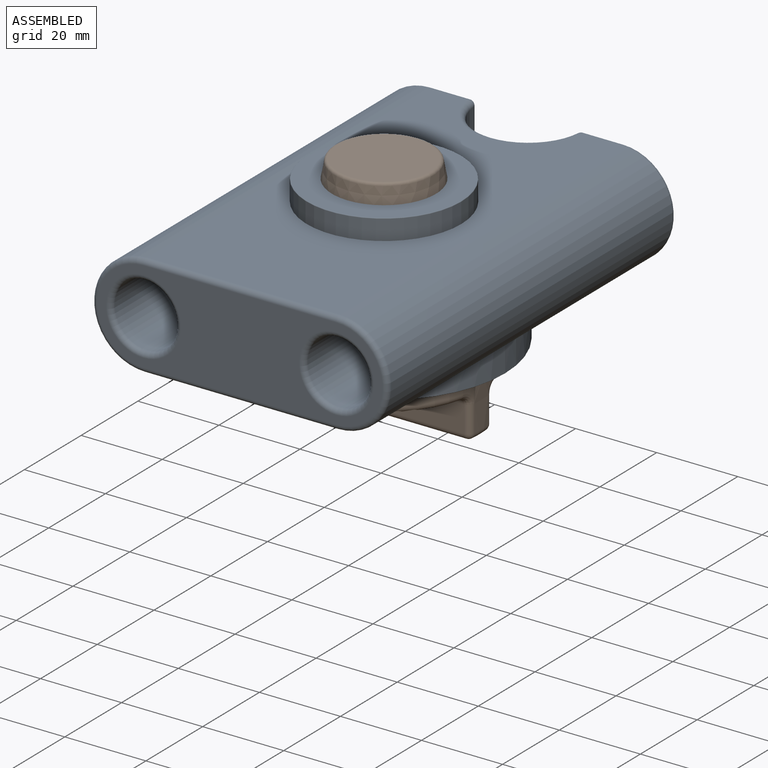
[diagram: assembled view]
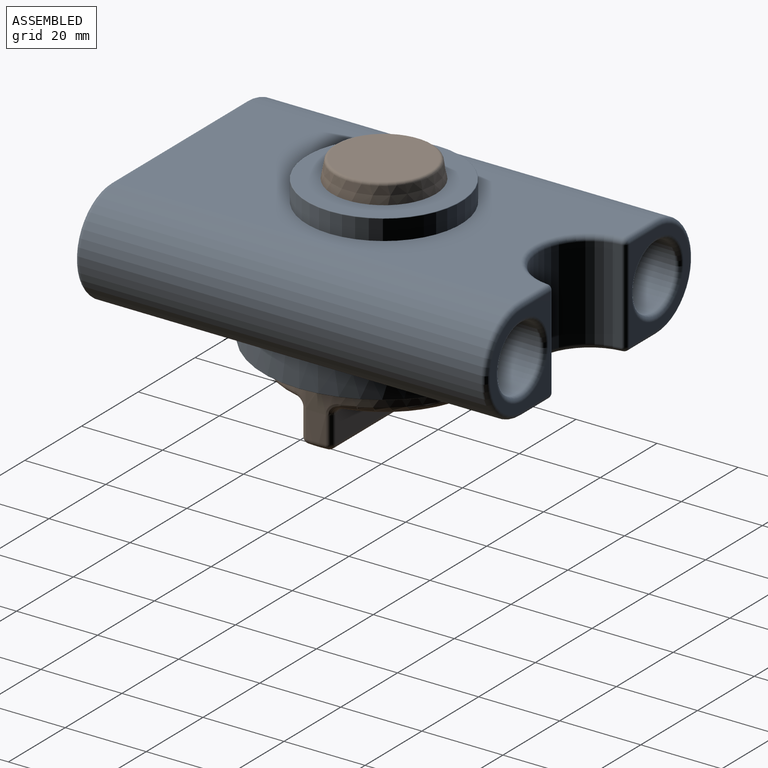
[diagram: assembled view, second angle]
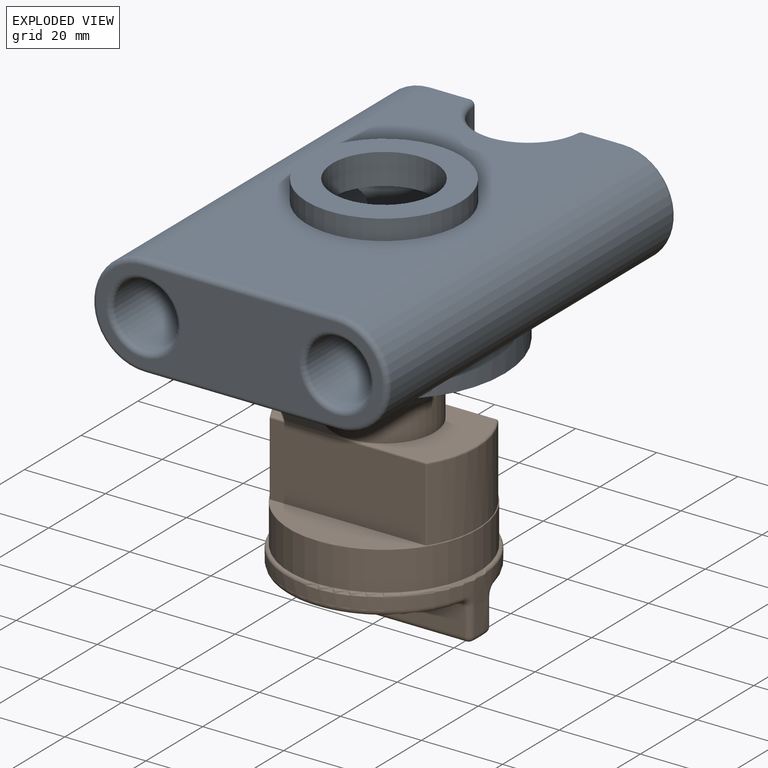
[diagram: exploded view]
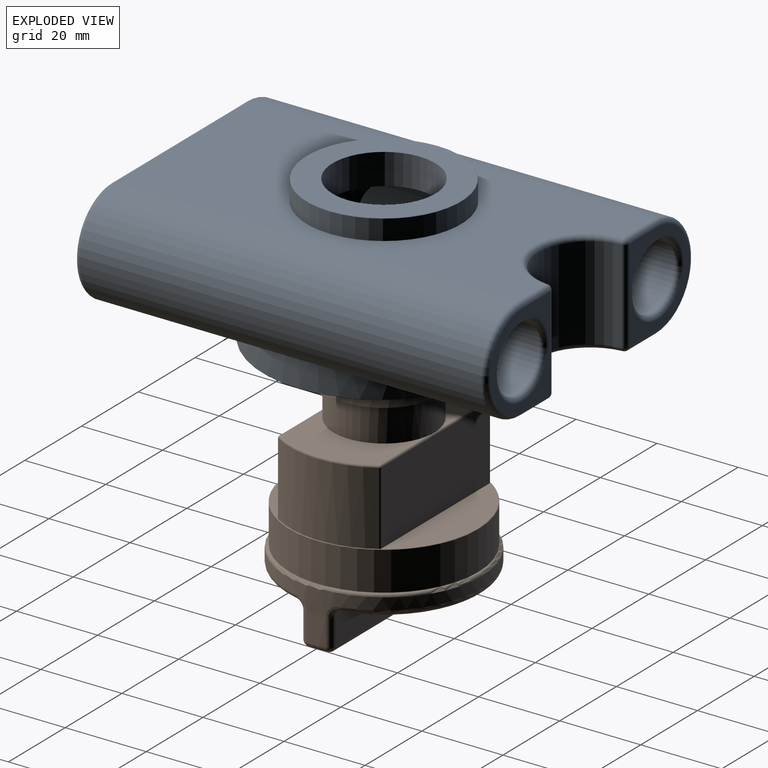
[diagram: exploded view, second angle]
ASSEMBLY  parts=2 mates=2
PART A: 43 faces, bbox 75.1x101.6x35.6 mm
  f0: cylinder r=12.7mm len=99.06mm, axis (0,1,0), area 3800.2mm2, adj f1,f2,f5,f18,f32,f39
  f1: plane 47.63x31.54mm, normal (0,0,1), area 836.5mm2, adj f0,f3,f20,f25,f30,f39
  f2: plane 47.63x31.54mm, normal (0,0,1), area 1107.6mm2, adj f0,f3,f16,f39
  f3: cylinder r=12.7mm len=99.06mm, axis (0,1,0), area 3800.2mm2, adj f1,f2,f5,f17,f21,f39
  f4: plane 22.86x21.33mm, normal (0,-1,0), area 165.2mm2, adj f29,f30,f32,f33,f37
  f5: plane 99.06x47.63mm, normal (0,0,-1), area 3306.5mm2, adj f0,f3,f13,f19,f23,f28,f33
  f6: cylinder r=7.94mm len=99.06mm, axis (0,1,0), area 4281.5mm2, adj f11,f34,f36
  f7: cylinder r=7.94mm len=99.06mm, axis (0,1,0), area 4280.9mm2, adj f11,f35,f37
  f8: plane 22.86x21.33mm, normal (0,-1,0), area 165.2mm2, adj f20,f21,f23,f24,f36
  f9: plane 70.49x22.86mm, normal (0,1,0), area 966.5mm2, adj f16,f17,f18,f19,f34,f35
  f10: cylinder r=12.7mm len=25.4mm, axis (0,0,1), area 608mm2, adj f12,f14
  f11: cylinder r=23.49mm len=46.99mm, axis (0,0,1), area 3040.1mm2, adj f6,f7,f12,f40
  f12: plane 46.99x46.99mm, normal (0,0,1), area 1227.5mm2, adj f10,f11
  f13: cylinder r=19.05mm len=38.1mm, axis (0,0,1), area 592.8mm2, adj f5,f42
  f14: plane 37.85x37.85mm, normal (0,0,-1), area 618.2mm2, adj f10,f42
  f15: cylinder r=12.7mm len=25.3mm, axis (0,0,-1), area 859.2mm2, adj f24,f25,f28,f29
  f16: cylinder r=1.27mm len=47.63mm, axis (-1,0,0), area 95mm2, adj f2,f9,f17,f18
  f17: torus R=11.43mm, axis (0,-1,0), area 76.7mm2, adj f3,f9,f16,f19
  f18: torus R=11.43mm, axis (0,-1,0), area 76.7mm2, adj f0,f9,f16,f19
  f19: cylinder r=1.27mm len=47.63mm, axis (1,0,0), area 95mm2, adj f5,f9,f17,f18
  f20: cylinder r=1.27mm len=9.9mm, axis (1,0,0), area 19.8mm2, adj f1,f8,f21,f22
  f21: torus R=11.43mm, axis (0,-1,0), area 76.7mm2, adj f3,f8,f20,f23
  f22: sphere r=1.27mm, area 2.4mm2, adj f20,f24,f25
  f23: cylinder r=1.27mm len=9.9mm, axis (-1,0,0), area 19.8mm2, adj f5,f8,f21,f26
  f24: cylinder r=1.27mm len=22.86mm, axis (0,0,-1), area 43mm2, adj f8,f15,f22,f26
  f25: torus R=13.97mm, axis (0,0,1), area 77.7mm2, adj f1,f15,f22,f27
  f26: sphere r=1.27mm, area 2.4mm2, adj f23,f24,f28
  f27: sphere r=1.27mm, area 2.4mm2, adj f25,f29,f30
  f28: torus R=13.97mm, axis (0,0,1), area 77.7mm2, adj f5,f15,f26,f31
  f29: cylinder r=1.27mm len=22.86mm, axis (0,0,-1), area 43mm2, adj f4,f15,f27,f31
  f30: cylinder r=1.27mm len=9.9mm, axis (1,0,0), area 19.8mm2, adj f1,f4,f27,f32
  f31: sphere r=1.27mm, area 2.4mm2, adj f28,f29,f33
  f32: torus R=11.43mm, axis (0,-1,0), area 76.7mm2, adj f0,f4,f30,f33
  f33: cylinder r=1.27mm len=9.9mm, axis (-1,0,0), area 19.8mm2, adj f4,f5,f31,f32
  f34: torus R=9.21mm, axis (0,-1,0), area 105.3mm2, adj f6,f9
  f35: torus R=9.21mm, axis (0,-1,0), area 105.3mm2, adj f7,f9
  f36: torus R=9.21mm, axis (0,-1,0), area 105.3mm2, adj f6,f8
  f37: torus R=9.21mm, axis (0,-1,0), area 105.3mm2, adj f4,f7
  f38: plane 59.44x59.44mm, normal (0,0,1), area 1021.5mm2, adj f40,f41
  f39: cylinder r=29.84mm len=59.69mm, axis (0,0,1), area 990mm2, adj f0,f1,f2,f3,f41
  f40: torus R=23.62mm, axis (0,0,1), area 29.5mm2, adj f11,f38
  f41: torus R=29.72mm, axis (0,0,1), area 37.4mm2, adj f38,f39
  f42: torus R=18.92mm, axis (0,0,-1), area 23.8mm2, adj f13,f14
PART B: 58 faces, bbox 52.2x52.2x55.6 mm
  f0: plane 24.38x20.1mm, normal (0,0,1), area 280.7mm2, adj f5,f49,f53,f54
  f1: plane 43.94x17.27mm, normal (0,0,-1), area 563.8mm2, adj f34,f35
  f2: cone r=12.83mm half-angle=10deg, axis (0,0,-1), area 313.9mm2, adj f4,f40
  f3: plane 22.76x22.76mm, normal (0,0,1), area 407mm2, adj f40
  f4: plane 25.65x25.65mm, normal (0,0,-1), area 30.3mm2, adj f2,f5
  f5: cylinder r=12.45mm len=24.89mm, axis (0,0,1), area 635.6mm2, adj f0,f4,f10,f46,f52
  f6: plane 38.07x18.1mm, normal (-1,0,0), area 686.8mm2, adj f11,f45,f50,f52,f54,f56
  f7: cylinder r=23.11mm len=24.93mm, axis (0,0,1), area 474.9mm2, adj f11,f48,f53,f56
  f8: plane 38.07x18.1mm, normal (1,0,0), area 686.8mm2, adj f11,f41,f43,f46,f48,f49
  f9: cylinder r=23.11mm len=24.93mm, axis (0,0,1), area 474.9mm2, adj f11,f41,f44,f45
  f10: plane 24.38x20.1mm, normal (0,0,1), area 280.7mm2, adj f5,f43,f44,f50
  f11: plane 46.36x46.36mm, normal (0,0,1), area 575.6mm2, adj f6,f7,f8,f9,f41,f45,f48,f56
  f12: cylinder r=23.3mm len=46.61mm, axis (0,0,1), area 1394.7mm2, adj f15,f57
  f13: cylinder r=24.13mm len=48.26mm, axis (0,0,1), area 526.6mm2, adj f19,f20,f22,f24,f25,f27,f28,f31
  f14: plane 43.94x17.27mm, normal (0,0,-1), area 563.8mm2, adj f21,f22
  f15: plane 46.74x46.74mm, normal (0,0,1), area 9.3mm2, adj f12,f39
  f16: plane 44.98x6.6mm, normal (1,0,0), area 297mm2, adj f28,f32,f35,f38
  f17: plane 44.98x6.6mm, normal (-1,0,0), area 297mm2, adj f20,f21,f26,f27
  f18: plane 45.21x4.57mm, normal (0,0,-1), area 206.4mm2, adj f25,f26,f32,f33
  f19: bspline ~3.75x3.73mm, area 7.9mm2, adj f13,f20,f21,f22
  f20: cylinder r=1.52mm len=6.6mm, axis (0,0,1), area 14.8mm2, adj f13,f17,f19,f23
  f21: cylinder r=1.52mm len=44.98mm, axis (0,1,0), area 106.4mm2, adj f14,f17,f19,f24
  f22: torus R=22.61mm, axis (0,0,-1), area 150.4mm2, adj f13,f14,f19,f24
  f23: sphere r=1.52mm, area 3.4mm2, adj f20,f25,f26
  f24: bspline ~4.01x3.58mm, area 7.9mm2, adj f13,f21,f22,f27
  f25: torus R=22.61mm, axis (0,0,-1), area 11.4mm2, adj f13,f18,f23,f29
  f26: cylinder r=1.52mm len=44.98mm, axis (0,-1,0), area 107.7mm2, adj f17,f18,f23,f30
  f27: cylinder r=1.52mm len=6.6mm, axis (0,0,1), area 14.8mm2, adj f13,f17,f24,f30
  f28: cylinder r=1.52mm len=6.6mm, axis (0,0,1), area 14.8mm2, adj f13,f16,f29,f31
  f29: sphere r=1.52mm, area 3.4mm2, adj f25,f28,f32
  f30: sphere r=1.52mm, area 3.4mm2, adj f26,f27,f33
  f31: bspline ~4.01x3.58mm, area 7.9mm2, adj f13,f28,f34,f35
  f32: cylinder r=1.52mm len=44.98mm, axis (0,1,0), area 107.7mm2, adj f16,f18,f29,f36
  f33: torus R=22.61mm, axis (0,0,-1), area 11.4mm2, adj f13,f18,f30,f36
  f34: torus R=22.61mm, axis (0,0,-1), area 150.4mm2, adj f1,f13,f31,f37
  f35: cylinder r=1.52mm len=44.98mm, axis (0,-1,0), area 106.4mm2, adj f1,f16,f31,f37
  f36: sphere r=1.52mm, area 3.4mm2, adj f32,f33,f38
  f37: bspline ~3.75x3.73mm, area 7.9mm2, adj f13,f34,f35,f38
  f38: cylinder r=1.52mm len=6.6mm, axis (0,0,1), area 14.8mm2, adj f13,f16,f36,f37
  f39: torus R=23.37mm, axis (0,0,-1), area 179.4mm2, adj f13,f15
  f40: torus R=11.38mm, axis (0,0,1), area 79.1mm2, adj f2,f3
  f41: cylinder r=0.51mm len=18.03mm, axis (0,0,1), area 9.2mm2, adj f8,f9,f11,f42
  f42: sphere r=0.51mm, area 0.3mm2, adj f41,f43,f44
  f43: cylinder r=0.51mm len=16.54mm, axis (0,-1,0), area 13.2mm2, adj f8,f10,f42,f46
  f44: torus R=22.61mm, axis (0,0,-1), area 20.8mm2, adj f9,f10,f42,f47
  f45: cylinder r=0.51mm len=18.03mm, axis (0,0,1), area 9.2mm2, adj f6,f9,f11,f47
  f46: bspline ~5.53x0.57mm, area 3.1mm2, adj f5,f8,f43,f49
  f47: sphere r=0.51mm, area 0.3mm2, adj f44,f45,f50
  f48: cylinder r=0.51mm len=18.03mm, axis (0,0,1), area 9.2mm2, adj f7,f8,f11,f51
  f49: cylinder r=0.51mm len=16.54mm, axis (0,-1,0), area 13.2mm2, adj f0,f8,f46,f51
  f50: cylinder r=0.51mm len=16.54mm, axis (0,1,0), area 13.2mm2, adj f6,f10,f47,f52
  f51: sphere r=0.51mm, area 0.2mm2, adj f48,f49,f53
  f52: bspline ~5.53x0.57mm, area 3.1mm2, adj f5,f6,f50,f54
  f53: torus R=22.61mm, axis (0,0,-1), area 20.8mm2, adj f0,f7,f51,f55
  f54: cylinder r=0.51mm len=16.54mm, axis (0,1,0), area 13.2mm2, adj f0,f6,f52,f55
  f55: sphere r=0.51mm, area 0.3mm2, adj f53,f54,f56
  f56: cylinder r=0.51mm len=18.03mm, axis (0,0,1), area 9.2mm2, adj f6,f7,f11,f55
  f57: torus R=23.18mm, axis (0,0,-1), area 29.2mm2, adj f11,f12
PLACE A rot(axis=(1,0,0),180deg) t=(20.59,-76.93,114.64)mm
PLACE B rot(axis=(0,0,-1),90deg) t=(20.59,-76.93,132.42)mm
MATE cylindrical B.f2 <-> A.f10  axis (0,0,1) through (20.59,-76.93,128.35)mm
MATE planar B.f2 <-> A.f10  axis (0,0,-1) through (20.59,-76.93,132.42)mm
